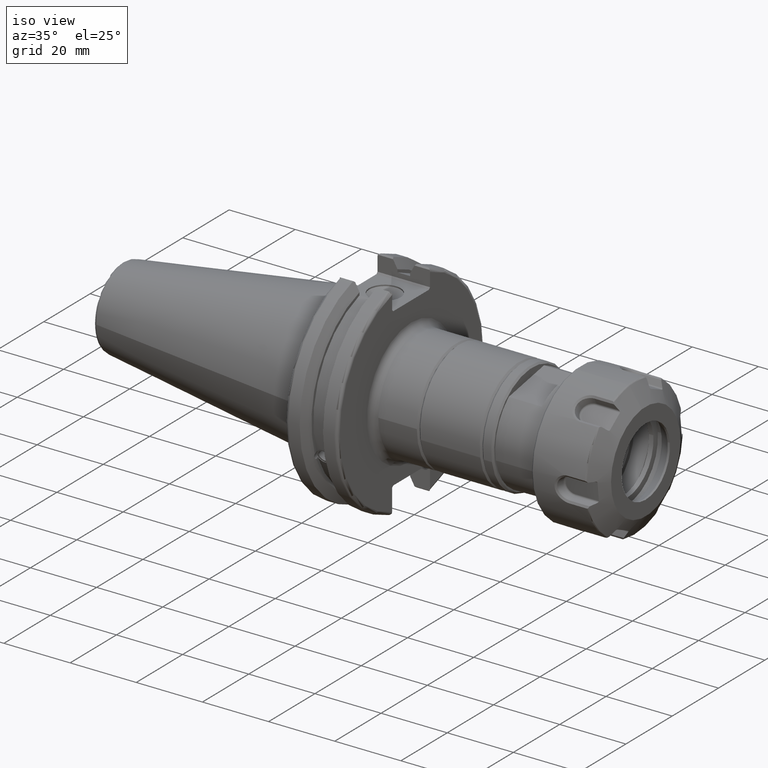
[diagram: clean part render]
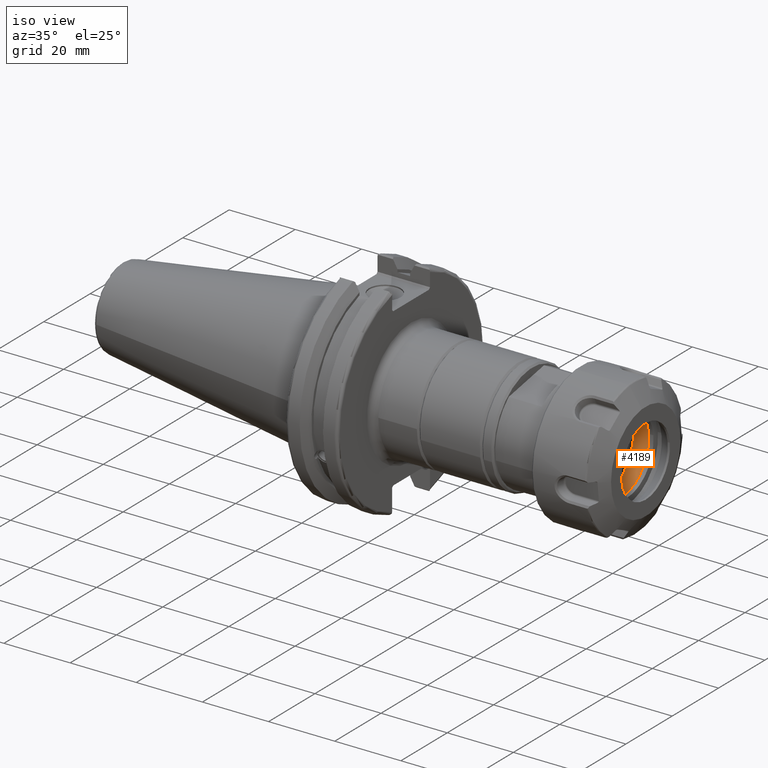
[diagram: same view with one face highlighted and labeled with its STEP entity id]
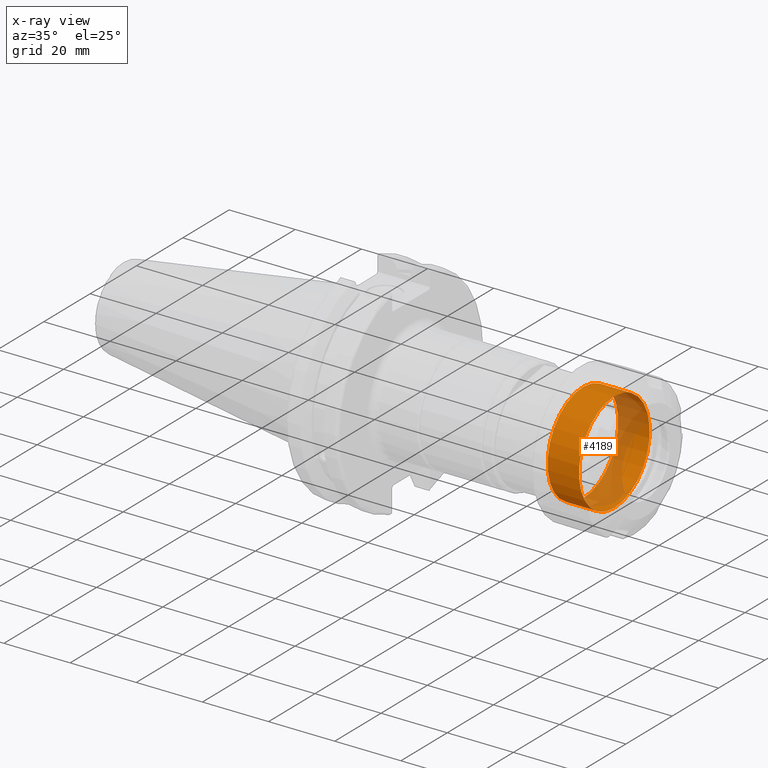
[diagram: x-ray of the same camera — body ghosted, the highlighted face saturated]
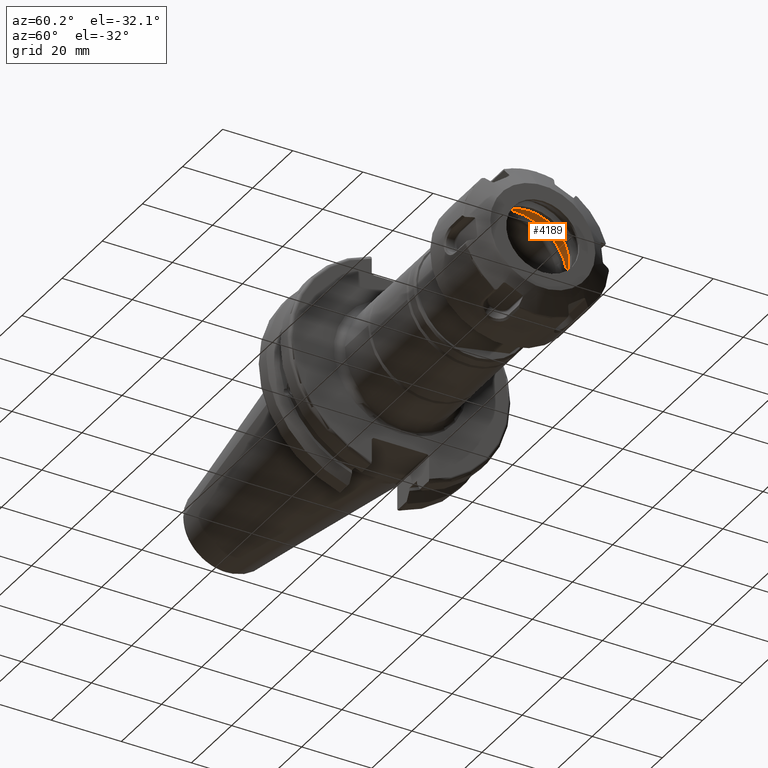
[diagram: same view with one face highlighted and labeled with its STEP entity id]
A machine part, iso view. The second image highlights one B-rep face of the part: STEP entity #4189.
The next image is the same camera in x-ray: the body ghosted, the highlighted face saturated — about 30% of this face is hidden behind the body in this view.
A second angle (auxiliary view) of the same face is appended — the face is thin or edge-on in the first view.
In plain terms, the highlighted cylindrical surface (bore or boss wall) has radius 15.25 mm, axis along (1, -0, -0).
Its self-contained STEP definition (entity closure, byte-faithful):
#468=CYLINDRICAL_SURFACE('',#4688,15.25);
#613=FACE_OUTER_BOUND('',#894,.T.);
#894=EDGE_LOOP('',(#3344,#3345,#3346,#3347,#3348));
#1169=LINE('',#7107,#1421);
#1421=VECTOR('',#5533,15.25);
#1660=CIRCLE('',#4686,15.25);
#1661=CIRCLE('',#4687,15.25);
#1662=CIRCLE('',#4689,15.25);
#1977=VERTEX_POINT('',#7100);
#1978=VERTEX_POINT('',#7102);
#1979=VERTEX_POINT('',#7106);
#2464=EDGE_CURVE('',#1977,#1978,#1660,.T.);
#2465=EDGE_CURVE('',#1978,#1977,#1661,.T.);
#2466=EDGE_CURVE('',#1978,#1979,#1169,.T.);
#2467=EDGE_CURVE('',#1979,#1979,#1662,.T.);
#3344=ORIENTED_EDGE('',*,*,#2464,.F.);
#3345=ORIENTED_EDGE('',*,*,#2465,.F.);
#3346=ORIENTED_EDGE('',*,*,#2466,.T.);
#3347=ORIENTED_EDGE('',*,*,#2467,.F.);
#3348=ORIENTED_EDGE('',*,*,#2466,.F.);
#4189=ADVANCED_FACE('',(#613),#468,.F.);
#4686=AXIS2_PLACEMENT_3D('',#7103,#5527,#5528);
#4687=AXIS2_PLACEMENT_3D('',#7104,#5529,#5530);
#4688=AXIS2_PLACEMENT_3D('',#7105,#5531,#5532);
#4689=AXIS2_PLACEMENT_3D('',#7108,#5534,#5535);
#5527=DIRECTION('center_axis',(1.,0.,0.));
#5528=DIRECTION('ref_axis',(0.,1.,0.));
#5529=DIRECTION('center_axis',(1.,0.,0.));
#5530=DIRECTION('ref_axis',(0.,1.,0.));
#5531=DIRECTION('center_axis',(1.,0.,0.));
#5532=DIRECTION('ref_axis',(0.,-1.,0.));
#5533=DIRECTION('',(1.,0.,0.));
#5534=DIRECTION('center_axis',(-1.,0.,0.));
#5535=DIRECTION('ref_axis',(0.,1.,0.));
#7100=CARTESIAN_POINT('',(-9.,-15.2496946962122,0.0964970067740085));
#7102=CARTESIAN_POINT('',(-9.,15.25,1.86758636869971E-15));
#7103=CARTESIAN_POINT('Origin',(-9.,0.,0.));
#7104=CARTESIAN_POINT('Origin',(-9.,0.,0.));
#7105=CARTESIAN_POINT('Origin',(0.,0.,0.));
#7106=CARTESIAN_POINT('',(0.5,15.25,0.));
#7107=CARTESIAN_POINT('',(0.,15.25,1.86758636869971E-15));
#7108=CARTESIAN_POINT('Origin',(0.5,0.,0.));